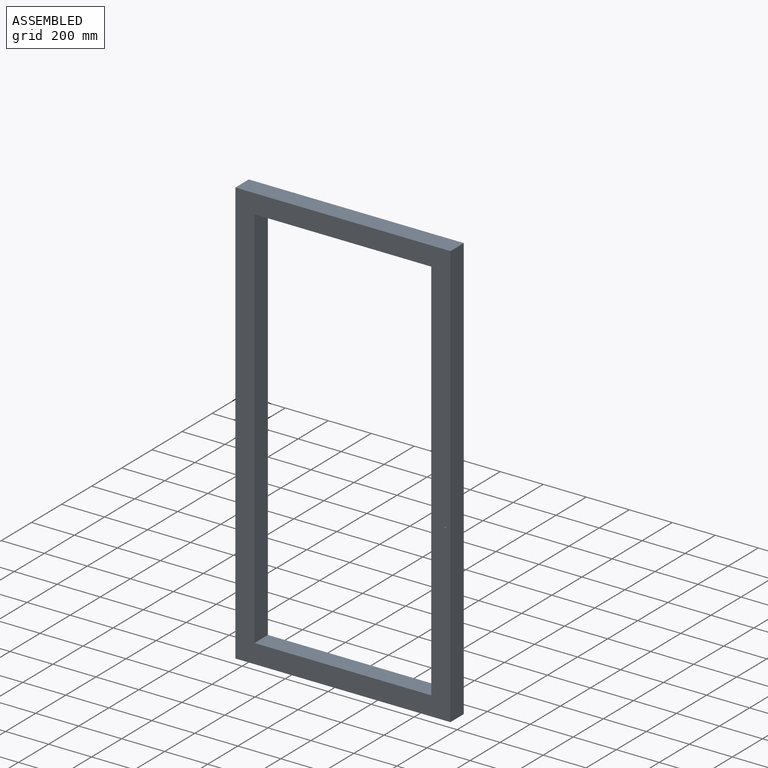
[diagram: assembled view]
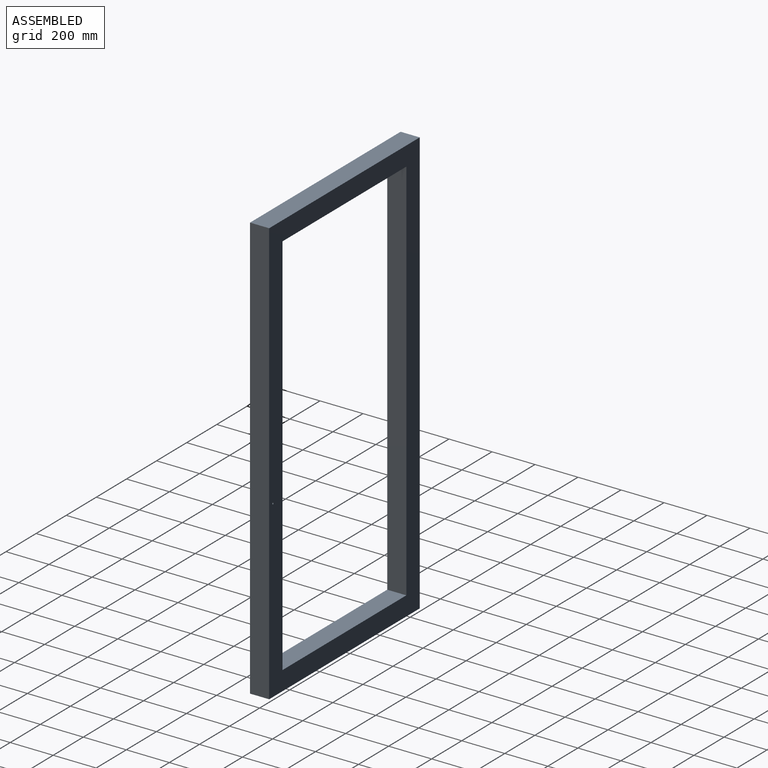
[diagram: assembled view, second angle]
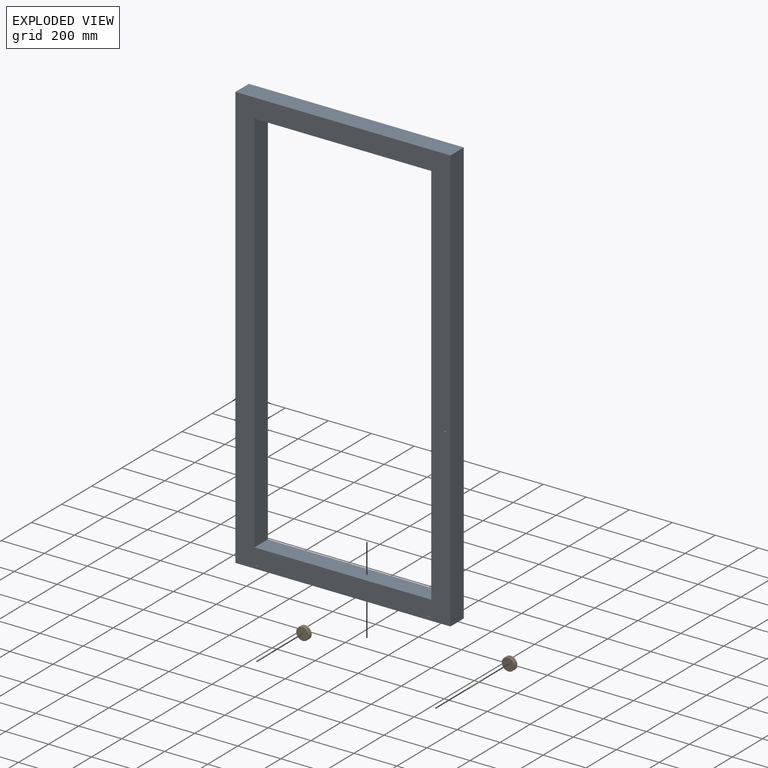
[diagram: exploded view]
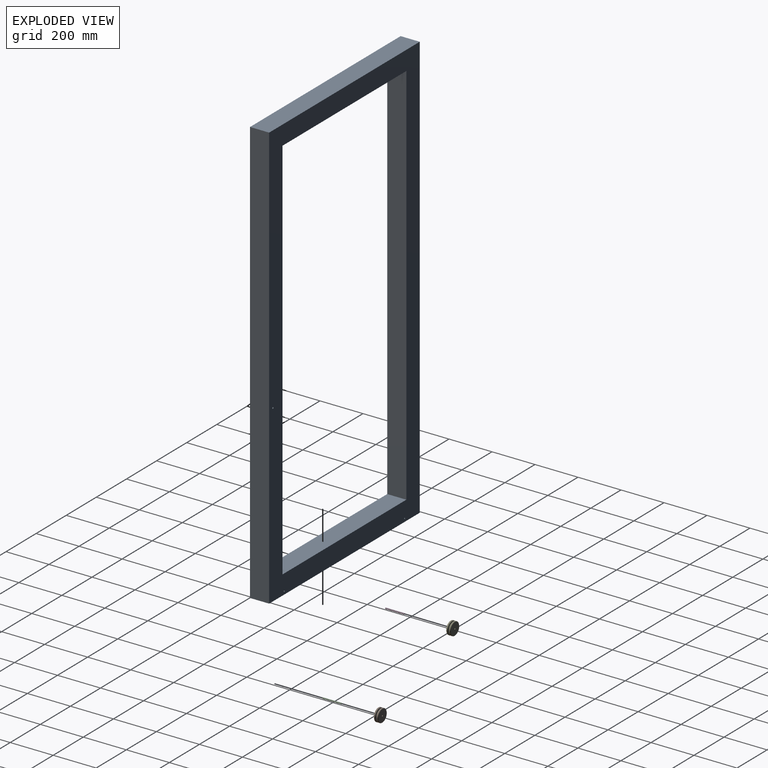
[diagram: exploded view, second angle]
ASSEMBLY  parts=5 mates=4
PART A: 25 faces, bbox 1000x88.9x1980 mm
  f0: plane 1000x88.9mm, normal (0,0,-1), area 85400mm2, adj f6,f8,f10,f11,f13,f14,f16,f17
  f1: cylinder r=3mm len=31.95mm, axis (0,-1,0), area 602.2mm2, adj f8,f22
  f2: cylinder r=3mm len=31.95mm, axis (0,-1,0), area 602.2mm2, adj f8,f16
  f3: plane 822.2x88.9mm, normal (0,0,-1), area 73093.6mm2, adj f5,f8,f9,f10
  f4: plane 1000x88.9mm, normal (0,0,1), area 88900mm2, adj f6,f8,f10,f11
  f5: plane 1802.2x88.9mm, normal (-1,0,0), area 160215.6mm2, adj f3,f7,f8,f10
  f6: plane 1980x88.9mm, normal (1,0,0), area 176022mm2, adj f0,f4,f8,f10
  f7: plane 822.2x88.9mm, normal (0,0,1), area 73093.6mm2, adj f5,f8,f9,f10
  f8: plane 1980x1000mm, normal (0,1,0), area 498124.3mm2, adj f0,f1,f2,f3,f4,f5,f6,f7
  f9: plane 1802.2x88.9mm, normal (1,0,0), area 160215.6mm2, adj f3,f7,f8,f10
  f10: plane 1980x1000mm, normal (0,-1,0), area 498124.3mm2, adj f0,f3,f4,f5,f6,f7,f9,f11
  f11: plane 1980x88.9mm, normal (-1,0,0), area 176022mm2, adj f0,f4,f8,f10
  f12: cylinder r=3mm len=31.95mm, axis (0,-1,0), area 602.2mm2, adj f10,f17
  f13: plane 50x25mm, normal (1,0,0), area 1250mm2, adj f0,f15,f16,f17
  f14: plane 50x25mm, normal (-1,0,0), area 1250mm2, adj f0,f15,f16,f17
  f15: plane 70x25mm, normal (0,0,-1), area 1750mm2, adj f13,f14,f16,f17
  f16: plane 70x50mm, normal (0,-1,0), area 3471.7mm2, adj f0,f2,f13,f14,f15
  f17: plane 70x50mm, normal (0,1,0), area 3471.7mm2, adj f0,f12,f13,f14,f15
  f18: cylinder r=3mm len=31.95mm, axis (0,-1,0), area 602.2mm2, adj f10,f23
  f19: plane 50x25mm, normal (-1,0,0), area 1250mm2, adj f0,f20,f22,f23
  f20: plane 70x25mm, normal (0,0,-1), area 1750mm2, adj f19,f21,f22,f23
  f21: plane 50x25mm, normal (1,0,0), area 1250mm2, adj f0,f20,f22,f23
  f22: plane 70x50mm, normal (0,-1,0), area 3471.7mm2, adj f0,f1,f19,f20,f21
  f23: plane 70x50mm, normal (0,1,0), area 3471.7mm2, adj f0,f18,f19,f20,f21
  f24: cylinder r=4mm len=88.9mm, axis (0,-1,0), area 2234.3mm2, adj f8,f10
PART B: 12 faces, bbox 60x20x60 mm
  f0: cylinder r=30mm len=60mm, axis (0,1,0), area 848.2mm2, adj f8,f9
  f1: plane 57x57mm, normal (0,1,0), area 2523.5mm2, adj f2,f8
  f2: cylinder r=3mm len=20mm, axis (0,1,0), area 377mm2, adj f1,f3
  f3: plane 57x57mm, normal (0,-1,0), area 2523.5mm2, adj f2,f11
  f4: cylinder r=30mm len=60mm, axis (0,1,0), area 848.2mm2, adj f10,f11
  f5: plane 57x57mm, normal (0,1,0), area 1031.2mm2, adj f6,f10
  f6: cylinder r=22mm len=44mm, axis (0,1,0), area 691.2mm2, adj f5,f7
  f7: plane 57x57mm, normal (0,-1,0), area 1031.2mm2, adj f6,f9
  f8: cone r=28.5mm half-angle=45deg, axis (0,-1,0), area 389.9mm2, adj f0,f1
  f9: cone r=30mm half-angle=45deg, axis (0,1,0), area 389.9mm2, adj f0,f7
  f10: cone r=28.5mm half-angle=45deg, axis (0,-1,0), area 389.9mm2, adj f4,f5
  f11: cone r=30mm half-angle=45deg, axis (0,1,0), area 389.9mm2, adj f3,f4
PART C: 3 faces, bbox 6x88.9x6 mm
  f0: cylinder r=3mm len=88.9mm, axis (0,1,0), area 1675.7mm2, adj f1,f2
  f1: plane 6x6mm, normal (0,1,0), area 28.3mm2, adj f0
  f2: plane 6x6mm, normal (0,-1,0), area 28.3mm2, adj f0
PART D: same geometry as C
PART E: same geometry as B
PLACE A at identity
PLACE B t=(900,0,0)mm
PLACE C t=(900,0,0)mm
PLACE D t=(100,0,0)mm
PLACE E t=(100,0,0)mm
MATE fastened D.f0 <-> A.f2  axis (0,-1,0) through (100,-44.45,30)mm
MATE fastened C.f0 <-> A.f1  axis (0,-1,0) through (900,-44.45,30)mm
MATE revolute B.f0 <-> C.f0  axis (0,1,0) through (900,0,30)mm
MATE revolute E.f0 <-> D.f0  axis (0,1,0) through (100,0,30)mm
